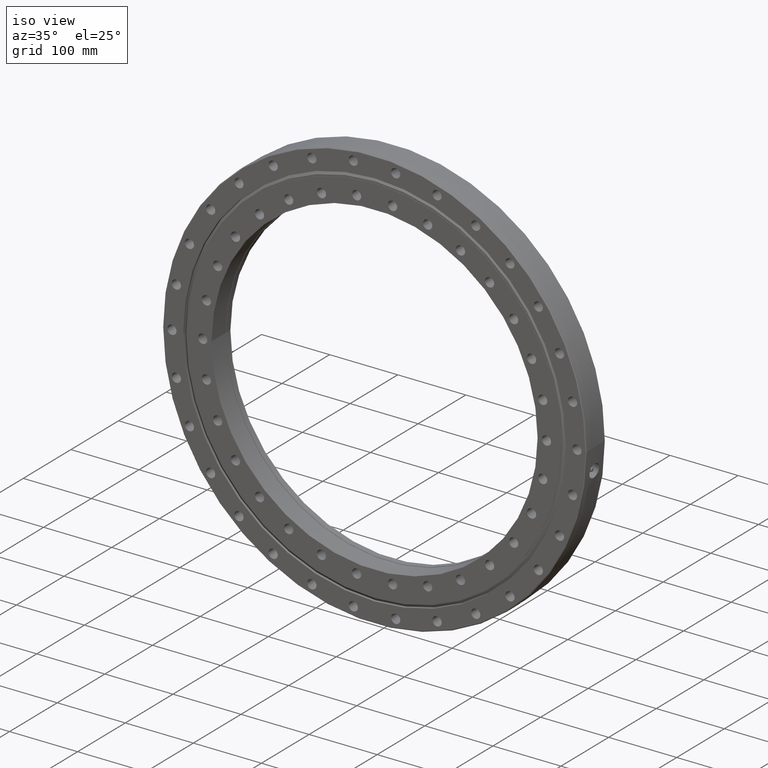
[diagram: clean part render]
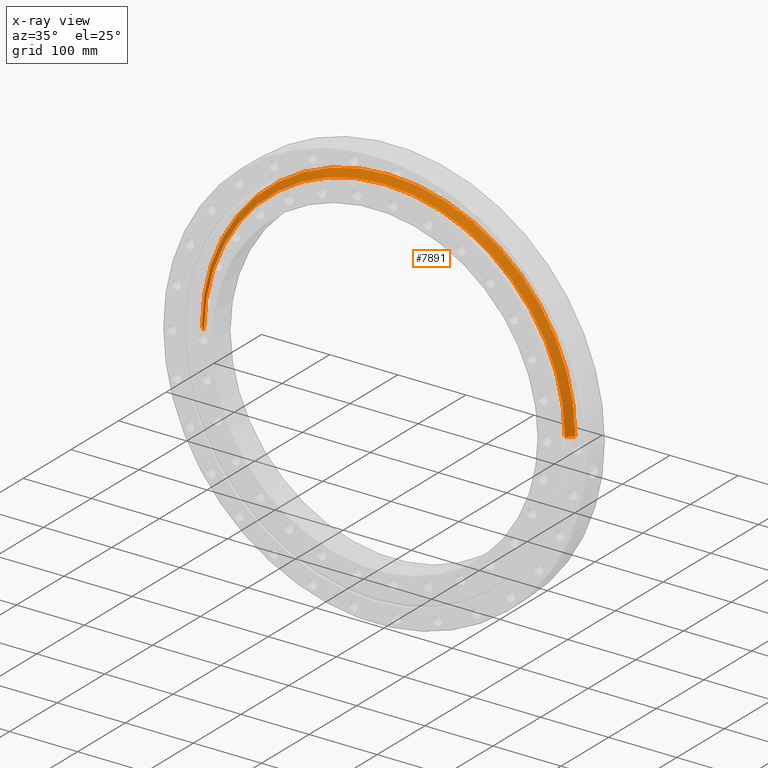
[diagram: x-ray — body ghosted, one internal face saturated and labeled with its STEP entity id]
A machine part, iso view, then the same camera in x-ray: the body is ghosted and one INTERNAL B-rep face — a face not visible from any outside direction — is saturated and labeled: STEP entity #7891.
In plain terms, the highlighted conical surface has half-angle 45 deg.
Its self-contained STEP definition (entity closure, byte-faithful):
#48 = DIRECTION ( 'NONE',  ( -0.7071067811865493500, 0.7071067811865456900, 0.0000000000000000000 ) ) ;
#77 = CARTESIAN_POINT ( 'NONE',  ( -274.2500000000000000, 9.856601717798167100, 0.0000000000000000000 ) ) ;
#398 = CARTESIAN_POINT ( 'NONE',  ( -265.1005050633883100, 0.7071067811865591200, 0.0000000000000000000 ) ) ;
#582 = VERTEX_POINT ( 'NONE', #6733 ) ;
#583 = DIRECTION ( 'NONE',  ( -1.000000000000000000, 2.530134513730985700E-017, 0.0000000000000000000 ) ) ;
#1051 = AXIS2_PLACEMENT_3D ( 'NONE', #7829, #3550, #8539 ) ;
#1285 = VECTOR ( 'NONE', #48, 1000.000000000000000 ) ;
#1621 = ORIENTED_EDGE ( 'NONE', *, *, #5784, .T. ) ;
#1841 = CIRCLE ( 'NONE', #6338, 265.1005050633883100 ) ;
#1882 = LINE ( 'NONE', #5679, #3512 ) ;
#1921 = ORIENTED_EDGE ( 'NONE', *, *, #3942, .F. ) ;
#2014 = FACE_OUTER_BOUND ( 'NONE', #6116, .T. ) ;
#2159 = DIRECTION ( 'NONE',  ( 0.7071067811865493500, 0.7071067811865456900, 8.659560562354955000E-017 ) ) ;
#3145 = ORIENTED_EDGE ( 'NONE', *, *, #8562, .F. ) ;
#3279 = VERTEX_POINT ( 'NONE', #8906 ) ;
#3512 = VECTOR ( 'NONE', #2159, 1000.000000000000000 ) ;
#3550 = DIRECTION ( 'NONE',  ( 2.727064569436389700E-017, 1.000000000000000000, 0.0000000000000000000 ) ) ;
#3934 = CARTESIAN_POINT ( 'NONE',  ( 8.654670220777320100E-016, 0.7071067811865519000, 0.0000000000000000000 ) ) ;
#3942 = EDGE_CURVE ( 'NONE', #7594, #582, #7118, .T. ) ;
#4618 = CIRCLE ( 'NONE', #1051, 274.2500000000000000 ) ;
#4645 = DIRECTION ( 'NONE',  ( -1.000000000000000000, 2.740151156602264400E-017, 0.0000000000000000000 ) ) ;
#5086 = CARTESIAN_POINT ( 'NONE',  ( 265.1005050633883100, 0.7071067811865445800, 3.246544849782252500E-014 ) ) ;
#5679 = CARTESIAN_POINT ( 'NONE',  ( 274.2500000000000000, 9.856601717798154600, 3.358593846661615900E-014 ) ) ;
#5784 = EDGE_CURVE ( 'NONE', #5878, #3279, #1882, .T. ) ;
#5878 = VERTEX_POINT ( 'NONE', #5086 ) ;
#6116 = EDGE_LOOP ( 'NONE', ( #9115, #1621, #3145, #1921 ) ) ;
#6338 = AXIS2_PLACEMENT_3D ( 'NONE', #3934, #8930, #4645 ) ;
#6699 = EDGE_CURVE ( 'NONE', #7594, #5878, #1841, .T. ) ;
#6733 = CARTESIAN_POINT ( 'NONE',  ( -274.2500000000000000, 9.856601717798167100, 0.0000000000000000000 ) ) ;
#6734 = AXIS2_PLACEMENT_3D ( 'NONE', #6890, #7633, #583 ) ;
#6890 = CARTESIAN_POINT ( 'NONE',  ( 1.114979656776443500E-015, 9.856601717798160000, 0.0000000000000000000 ) ) ;
#7118 = LINE ( 'NONE', #77, #1285 ) ;
#7199 = CONICAL_SURFACE ( 'NONE', #6734, 274.2500000000000000, 0.7853981633974509400 ) ;
#7594 = VERTEX_POINT ( 'NONE', #398 ) ;
#7633 = DIRECTION ( 'NONE',  ( 2.727064569436389700E-017, 1.000000000000000000, 0.0000000000000000000 ) ) ;
#7829 = CARTESIAN_POINT ( 'NONE',  ( 1.114979656776443500E-015, 9.856601717798160000, 0.0000000000000000000 ) ) ;
#7891 = ADVANCED_FACE ( 'NONE', ( #2014 ), #7199, .T. ) ;
#8539 = DIRECTION ( 'NONE',  ( -1.000000000000000000, 2.530134513730985700E-017, 0.0000000000000000000 ) ) ;
#8562 = EDGE_CURVE ( 'NONE', #582, #3279, #4618, .T. ) ;
#8906 = CARTESIAN_POINT ( 'NONE',  ( 274.2500000000000000, 9.856601717798154600, 3.358593846661615900E-014 ) ) ;
#8930 = DIRECTION ( 'NONE',  ( 2.727064569436389700E-017, 1.000000000000000000, 0.0000000000000000000 ) ) ;
#9115 = ORIENTED_EDGE ( 'NONE', *, *, #6699, .T. ) ;